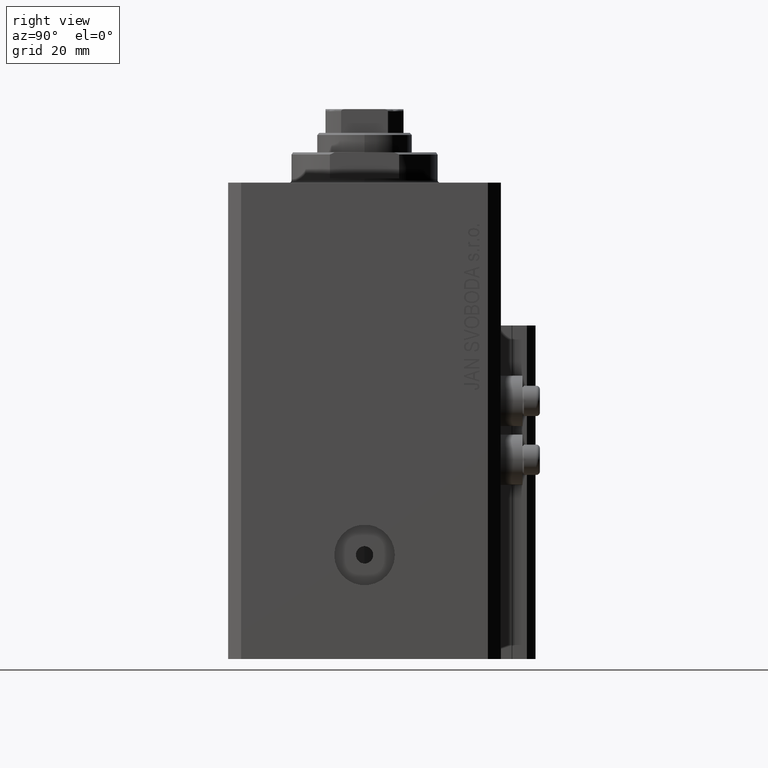
[diagram: clean part render]
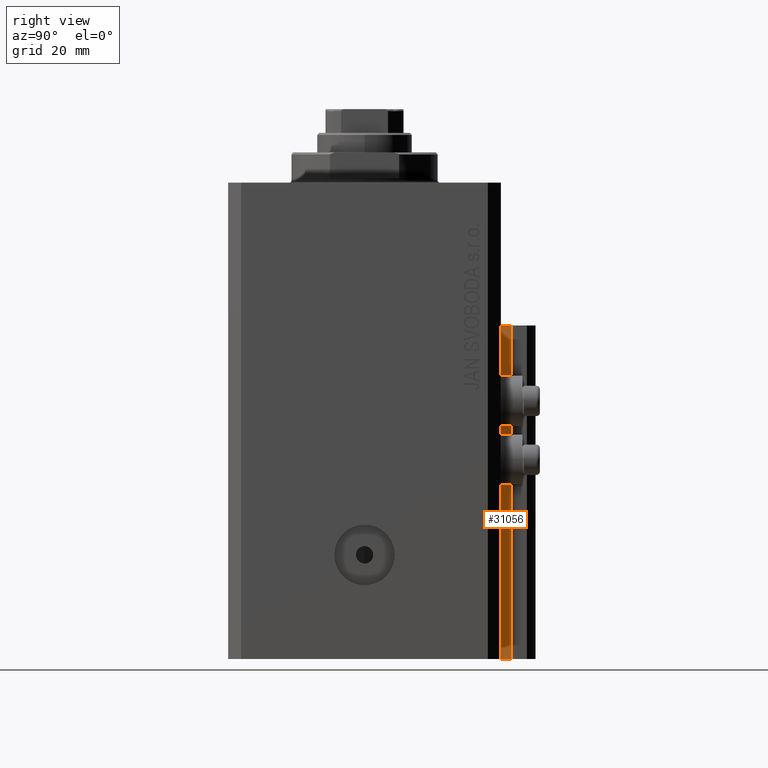
[diagram: same view with one face highlighted and labeled with its STEP entity id]
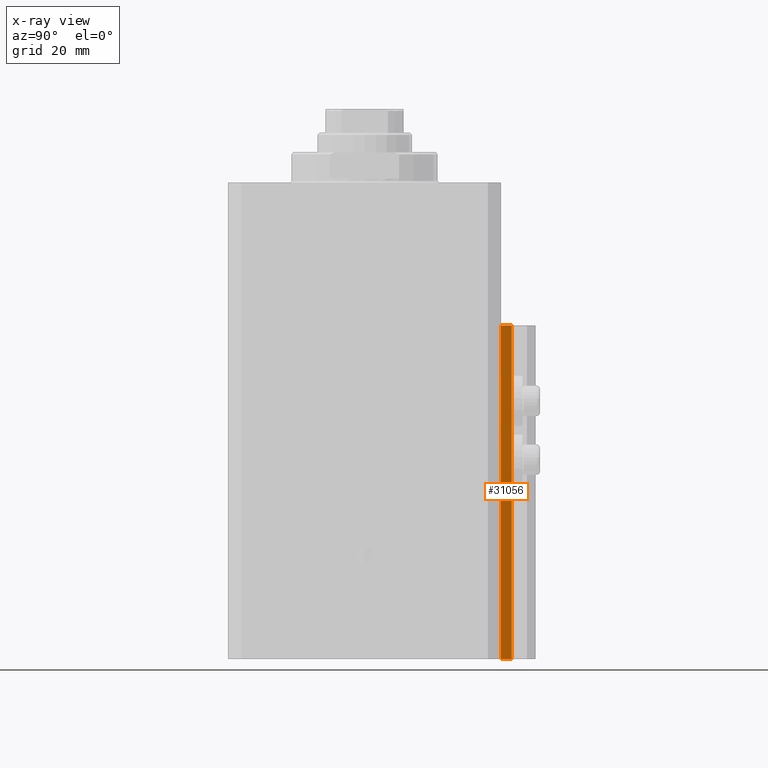
[diagram: x-ray of the same camera — body ghosted, the highlighted face saturated]
A machine part, right view. The second image highlights one B-rep face of the part: STEP entity #31056.
The next image is the same camera in x-ray: the body ghosted, the highlighted face saturated — about 0% of this face is hidden behind the body in this view.
In plain terms, the highlighted planar face has unit normal (1, 0, 0).
Its self-contained STEP definition (entity closure, byte-faithful):
#66 = VECTOR ( 'NONE', #33120, 1000.000000000000000 ) ;
#335 = VECTOR ( 'NONE', #21483, 1000.000000000000000 ) ;
#1942 = ORIENTED_EDGE ( 'NONE', *, *, #34103, .T. ) ;
#2904 = DIRECTION ( 'NONE',  ( 0.000000000000000000, 0.000000000000000000, -1.000000000000000000 ) ) ;
#3165 = CARTESIAN_POINT ( 'NONE',  ( 14.49999999999999645, 34.00000000000001421, -110.0000000000000000 ) ) ;
#3199 = VECTOR ( 'NONE', #41754, 1000.000000000000000 ) ;
#6732 = PLANE ( 'NONE',  #10720 ) ;
#6908 = CARTESIAN_POINT ( 'NONE',  ( 14.49999999999999645, 31.50000000000000000, -110.0000000000000000 ) ) ;
#7199 = CARTESIAN_POINT ( 'NONE',  ( 14.49999999999999645, 31.50000000000000000, -110.0000000000000000 ) ) ;
#7400 = VERTEX_POINT ( 'NONE', #8261 ) ;
#8197 = VERTEX_POINT ( 'NONE', #41902 ) ;
#8261 = CARTESIAN_POINT ( 'NONE',  ( 14.49999999999999645, 31.50000000000000000, -110.0000000000000000 ) ) ;
#8348 = LINE ( 'NONE', #27196, #3199 ) ;
#10720 = AXIS2_PLACEMENT_3D ( 'NONE', #7199, #47064, #2904 ) ;
#15989 = ORIENTED_EDGE ( 'NONE', *, *, #18670, .F. ) ;
#18551 = CARTESIAN_POINT ( 'NONE',  ( 14.49999999999999645, 31.50000000000000000, -110.0000000000000000 ) ) ;
#18670 = EDGE_CURVE ( 'NONE', #8197, #21392, #43678, .T. ) ;
#20186 = VERTEX_POINT ( 'NONE', #3165 ) ;
#21392 = VERTEX_POINT ( 'NONE', #22680 ) ;
#21483 = DIRECTION ( 'NONE',  ( 0.000000000000000000, 1.000000000000000000, 0.000000000000000000 ) ) ;
#22680 = CARTESIAN_POINT ( 'NONE',  ( 14.49999999999999645, 34.00000000000001421, -33.00000000000000000 ) ) ;
#24643 = FACE_OUTER_BOUND ( 'NONE', #42937, .T. ) ;
#25533 = CARTESIAN_POINT ( 'NONE',  ( 14.49999999999999645, 31.50000000000000000, -33.00000000000000000 ) ) ;
#27196 = CARTESIAN_POINT ( 'NONE',  ( 14.49999999999999645, 34.00000000000001421, -110.0000000000000000 ) ) ;
#29484 = ORIENTED_EDGE ( 'NONE', *, *, #32439, .F. ) ;
#31056 = ADVANCED_FACE ( 'NONE', ( #24643 ), #6732, .T. ) ;
#32439 = EDGE_CURVE ( 'NONE', #7400, #8197, #37399, .T. ) ;
#32460 = DIRECTION ( 'NONE',  ( 0.000000000000000000, 1.000000000000000000, 0.000000000000000000 ) ) ;
#33120 = DIRECTION ( 'NONE',  ( 0.000000000000000000, 0.000000000000000000, 1.000000000000000000 ) ) ;
#34103 = EDGE_CURVE ( 'NONE', #20186, #21392, #8348, .T. ) ;
#35109 = LINE ( 'NONE', #6908, #335 ) ;
#37399 = LINE ( 'NONE', #18551, #66 ) ;
#40501 = EDGE_CURVE ( 'NONE', #7400, #20186, #35109, .T. ) ;
#41754 = DIRECTION ( 'NONE',  ( 0.000000000000000000, 0.000000000000000000, 1.000000000000000000 ) ) ;
#41902 = CARTESIAN_POINT ( 'NONE',  ( 14.49999999999999645, 31.50000000000000000, -33.00000000000000000 ) ) ;
#42937 = EDGE_LOOP ( 'NONE', ( #15989, #29484, #43483, #1942 ) ) ;
#43483 = ORIENTED_EDGE ( 'NONE', *, *, #40501, .T. ) ;
#43678 = LINE ( 'NONE', #25533, #44790 ) ;
#44790 = VECTOR ( 'NONE', #32460, 1000.000000000000000 ) ;
#47064 = DIRECTION ( 'NONE',  ( 1.000000000000000000, 0.000000000000000000, 0.000000000000000000 ) ) ;